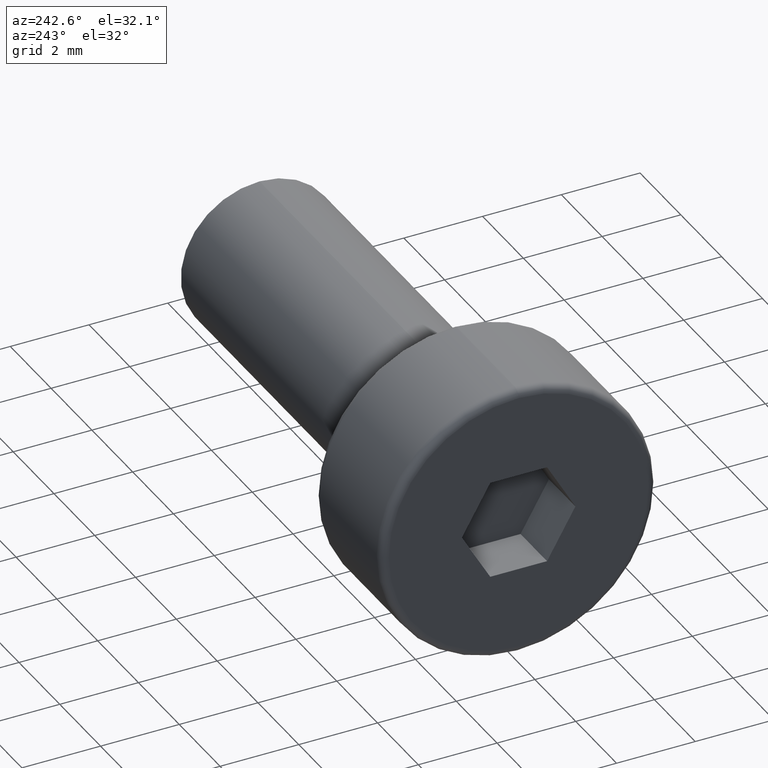
[diagram: clean part render]
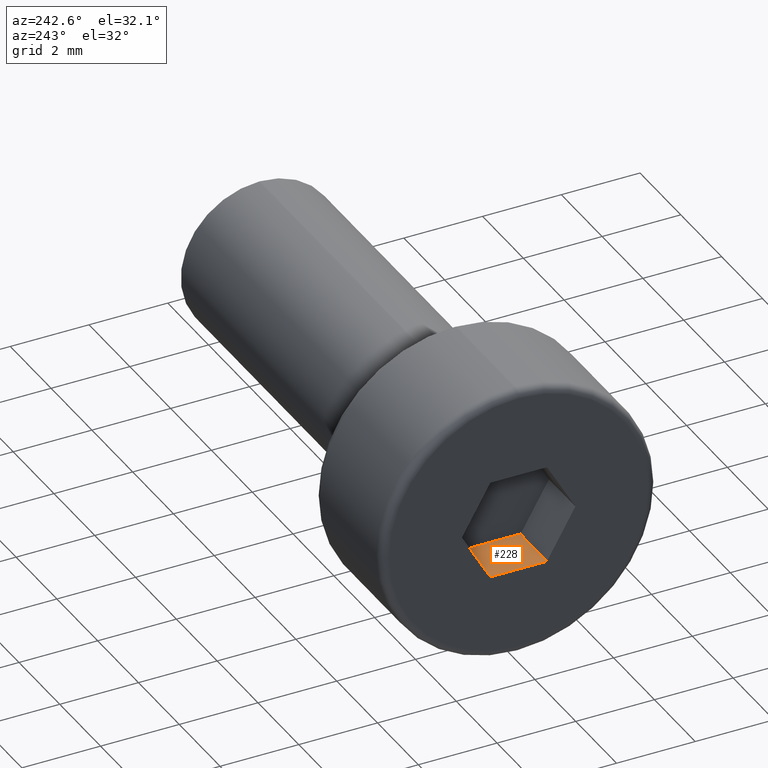
[diagram: same view with one face highlighted and labeled with its STEP entity id]
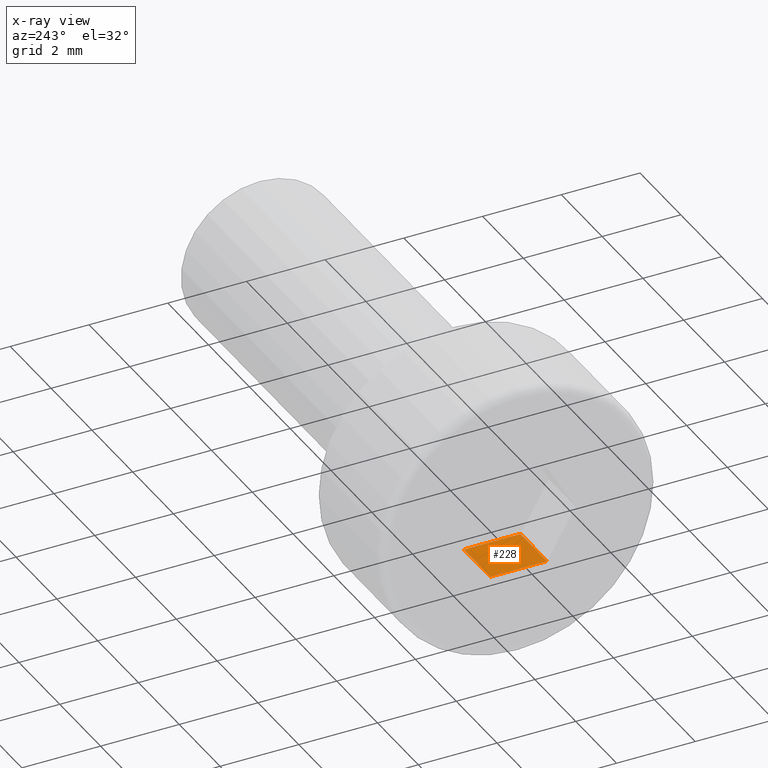
[diagram: x-ray of the same camera — body ghosted, the highlighted face saturated]
A machine part, auxiliary view. The second image highlights one B-rep face of the part: STEP entity #228.
The next image is the same camera in x-ray: the body ghosted, the highlighted face saturated — about 0% of this face is hidden behind the body in this view.
In plain terms, the highlighted planar face has unit normal (0, -0, -1).
Its self-contained STEP definition (entity closure, byte-faithful):
#16 = EDGE_CURVE ( 'NONE', #581, #538, #692, .T. ) ;
#45 = VECTOR ( 'NONE', #284, 1000.000000000000000 ) ;
#48 = VECTOR ( 'NONE', #524, 1000.000000000000000 ) ;
#54 = CARTESIAN_POINT ( 'NONE',  ( -1.900000000000000100, -0.7216878364870932300, -1.250000000000020900 ) ) ;
#62 = VECTOR ( 'NONE', #790, 1000.000000000000000 ) ;
#67 = CARTESIAN_POINT ( 'NONE',  ( -3.200000000000000200, -0.7216878364870932300, -1.250000000000020900 ) ) ;
#88 = ORIENTED_EDGE ( 'NONE', *, *, #681, .F. ) ;
#108 = CARTESIAN_POINT ( 'NONE',  ( -1.900000000000000100, 0.7216878364870081800, -1.250000000000022200 ) ) ;
#127 = EDGE_CURVE ( 'NONE', #538, #625, #180, .T. ) ;
#137 = DIRECTION ( 'NONE',  ( 0.0000000000000000000, 1.000000000000000000, -9.013887592422725400E-016 ) ) ;
#180 = LINE ( 'NONE', #67, #276 ) ;
#190 = CARTESIAN_POINT ( 'NONE',  ( -1.900000000000000100, -0.7216878364870932300, -1.250000000000020900 ) ) ;
#198 = DIRECTION ( 'NONE',  ( 0.0000000000000000000, -9.013887592422725400E-016, -1.000000000000000000 ) ) ;
#223 = LINE ( 'NONE', #54, #62 ) ;
#228 = ADVANCED_FACE ( 'NONE', ( #749 ), #506, .F. ) ;
#236 = ORIENTED_EDGE ( 'NONE', *, *, #127, .T. ) ;
#276 = VECTOR ( 'NONE', #814, 1000.000000000000000 ) ;
#284 = DIRECTION ( 'NONE',  ( -1.000000000000000000, -0.0000000000000000000, -0.0000000000000000000 ) ) ;
#285 = AXIS2_PLACEMENT_3D ( 'NONE', #758, #198, #137 ) ;
#399 = CARTESIAN_POINT ( 'NONE',  ( -3.200000000000000200, 0.7216878364870081800, -1.250000000000022200 ) ) ;
#441 = CARTESIAN_POINT ( 'NONE',  ( -3.200000000000000200, -0.7216878364870931200, -1.250000000000020700 ) ) ;
#475 = VERTEX_POINT ( 'NONE', #190 ) ;
#506 = PLANE ( 'NONE',  #285 ) ;
#524 = DIRECTION ( 'NONE',  ( -0.0000000000000000000, -1.000000000000000000, 9.013887592422725400E-016 ) ) ;
#538 = VERTEX_POINT ( 'NONE', #399 ) ;
#554 = EDGE_LOOP ( 'NONE', ( #236, #88, #665, #673 ) ) ;
#573 = CARTESIAN_POINT ( 'NONE',  ( -1.900000000000000100, 0.7216878364870081800, -1.250000000000022200 ) ) ;
#576 = CARTESIAN_POINT ( 'NONE',  ( -1.900000000000000100, -0.7216878364870932300, -1.250000000000020900 ) ) ;
#581 = VERTEX_POINT ( 'NONE', #573 ) ;
#625 = VERTEX_POINT ( 'NONE', #441 ) ;
#665 = ORIENTED_EDGE ( 'NONE', *, *, #701, .F. ) ;
#673 = ORIENTED_EDGE ( 'NONE', *, *, #16, .T. ) ;
#681 = EDGE_CURVE ( 'NONE', #475, #625, #223, .T. ) ;
#692 = LINE ( 'NONE', #108, #45 ) ;
#697 = LINE ( 'NONE', #576, #48 ) ;
#701 = EDGE_CURVE ( 'NONE', #581, #475, #697, .T. ) ;
#749 = FACE_OUTER_BOUND ( 'NONE', #554, .T. ) ;
#758 = CARTESIAN_POINT ( 'NONE',  ( -1.900000000000000100, -0.7216878364870932300, -1.250000000000020900 ) ) ;
#790 = DIRECTION ( 'NONE',  ( -1.000000000000000000, -0.0000000000000000000, -0.0000000000000000000 ) ) ;
#814 = DIRECTION ( 'NONE',  ( -0.0000000000000000000, -1.000000000000000000, 9.013887592422725400E-016 ) ) ;